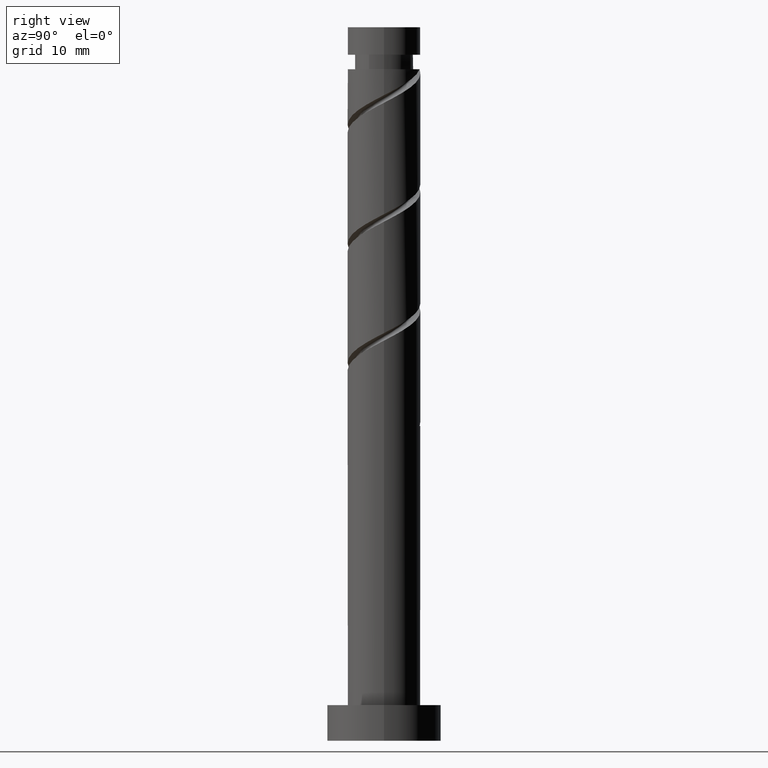
[diagram: clean part render]
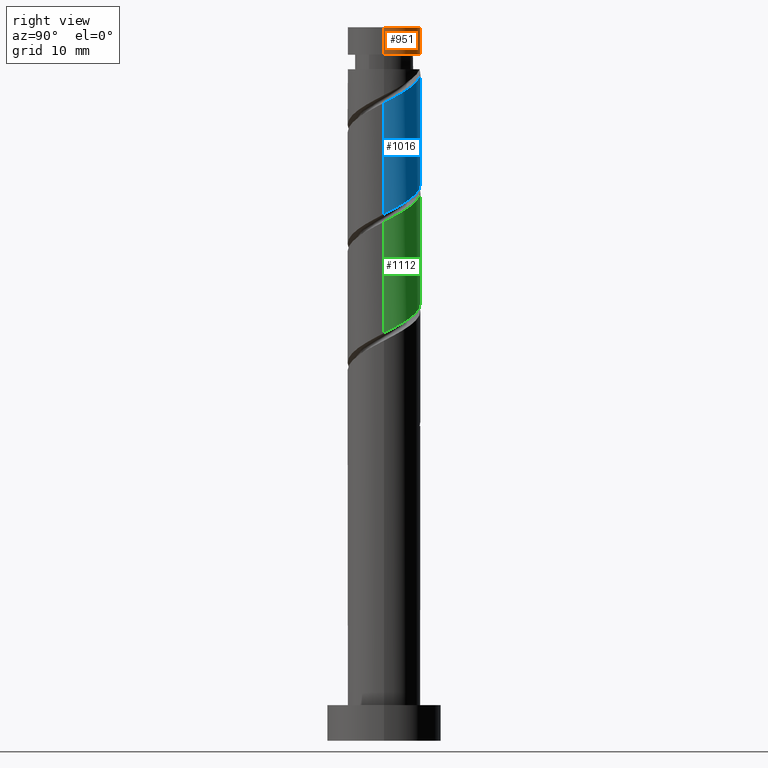
[diagram: same view with three faces highlighted in distinct colors, each labeled with its STEP entity id]
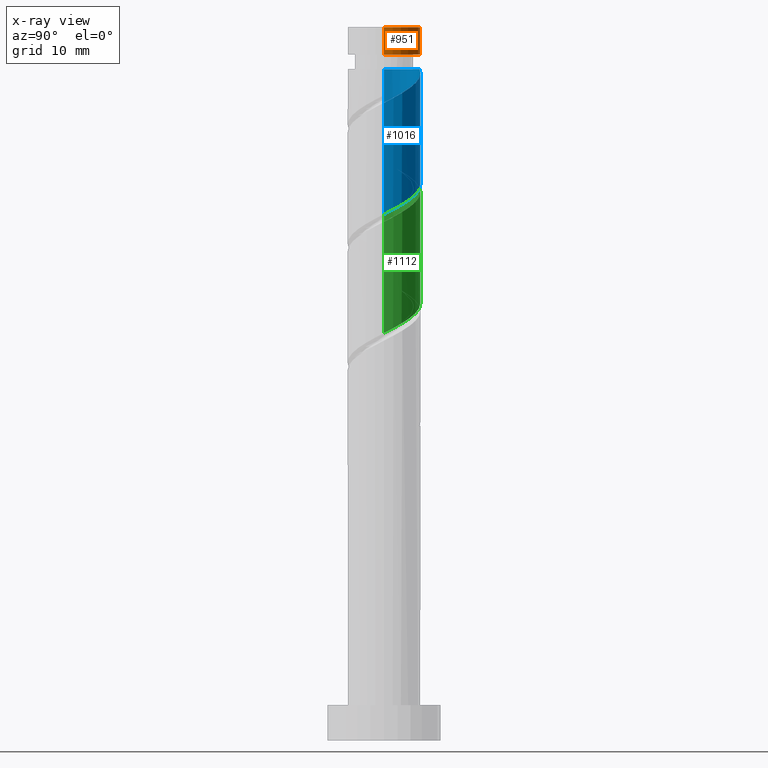
[diagram: x-ray of the same camera — body ghosted, the three highlighted faces saturated]
A machine part, right view with three faces highlighted in distinct colors.
The next image is the same camera in x-ray (body ghosted, the three faces saturated) — at least one of them is partly hidden behind the body in this view.
Their STEP definitions:

[orange] entity #951 — the highlighted cylindrical surface (edge-blend (fillet) strip) has radius 5.1 mm, axis along (-0, -0, -1).
#3 = CARTESIAN_POINT ( 'NONE',  ( 0.000000000000000000, 0.000000000000000000, 96.15197942180186885 ) ) ;
#56 = CIRCLE ( 'NONE', #1044, 5.099999999999999645 ) ;
#73 = DIRECTION ( 'NONE',  ( 0.000000000000000000, 0.000000000000000000, 1.000000000000000000 ) ) ;
#92 = VERTEX_POINT ( 'NONE', #964 ) ;
#102 = LINE ( 'NONE', #211, #1171 ) ;
#178 = CYLINDRICAL_SURFACE ( 'NONE', #221, 5.099999999999999645 ) ;
#211 = CARTESIAN_POINT ( 'NONE',  ( 5.099999999999999645, 6.245698675651500839E-16, 100.0000000000000000 ) ) ;
#218 = DIRECTION ( 'NONE',  ( -0.000000000000000000, -0.000000000000000000, -1.000000000000000000 ) ) ;
#221 = AXIS2_PLACEMENT_3D ( 'NONE', #989, #1453, #884 ) ;
#224 = DIRECTION ( 'NONE',  ( -0.000000000000000000, -0.000000000000000000, -1.000000000000000000 ) ) ;
#299 = CARTESIAN_POINT ( 'NONE',  ( 5.099999999999999645, 6.245698675651500839E-16, 100.0000000000000000 ) ) ;
#320 = CARTESIAN_POINT ( 'NONE',  ( 5.100000000000000533, 6.245698675651501825E-16, 96.15197942180186885 ) ) ;
#401 = VERTEX_POINT ( 'NONE', #909 ) ;
#452 = CARTESIAN_POINT ( 'NONE',  ( -5.099999999999999645, 0.000000000000000000, 100.0000000000000000 ) ) ;
#464 = EDGE_LOOP ( 'NONE', ( #1149, #837, #1304, #997 ) ) ;
#527 = FACE_OUTER_BOUND ( 'NONE', #464, .T. ) ;
#543 = DIRECTION ( 'NONE',  ( 1.000000000000000000, 0.000000000000000000, 0.000000000000000000 ) ) ;
#704 = EDGE_CURVE ( 'NONE', #92, #1042, #1283, .T. ) ;
#796 = VERTEX_POINT ( 'NONE', #299 ) ;
#822 = EDGE_CURVE ( 'NONE', #796, #401, #56, .T. ) ;
#828 = AXIS2_PLACEMENT_3D ( 'NONE', #3, #1484, #1472 ) ;
#837 = ORIENTED_EDGE ( 'NONE', *, *, #1219, .T. ) ;
#873 = CARTESIAN_POINT ( 'NONE',  ( 0.000000000000000000, 0.000000000000000000, 100.0000000000000000 ) ) ;
#884 = DIRECTION ( 'NONE',  ( -1.000000000000000000, 0.000000000000000000, 0.000000000000000000 ) ) ;
#909 = CARTESIAN_POINT ( 'NONE',  ( -5.099999999999999645, 0.000000000000000000, 100.0000000000000000 ) ) ;
#951 = ADVANCED_FACE ( 'NONE', ( #527 ), #178, .T. ) ;
#964 = CARTESIAN_POINT ( 'NONE',  ( -5.100000000000000533, 0.000000000000000000, 96.15197942180186885 ) ) ;
#989 = CARTESIAN_POINT ( 'NONE',  ( 0.000000000000000000, 0.000000000000000000, 100.0000000000000000 ) ) ;
#997 = ORIENTED_EDGE ( 'NONE', *, *, #1309, .F. ) ;
#1042 = VERTEX_POINT ( 'NONE', #320 ) ;
#1044 = AXIS2_PLACEMENT_3D ( 'NONE', #873, #73, #543 ) ;
#1149 = ORIENTED_EDGE ( 'NONE', *, *, #822, .F. ) ;
#1150 = LINE ( 'NONE', #452, #1257 ) ;
#1171 = VECTOR ( 'NONE', #224, 1000.000000000000000 ) ;
#1219 = EDGE_CURVE ( 'NONE', #796, #1042, #102, .T. ) ;
#1257 = VECTOR ( 'NONE', #218, 1000.000000000000000 ) ;
#1283 = CIRCLE ( 'NONE', #828, 5.100000000000000533 ) ;
#1304 = ORIENTED_EDGE ( 'NONE', *, *, #704, .F. ) ;
#1309 = EDGE_CURVE ( 'NONE', #401, #92, #1150, .T. ) ;
#1453 = DIRECTION ( 'NONE',  ( -0.000000000000000000, -0.000000000000000000, -1.000000000000000000 ) ) ;
#1472 = DIRECTION ( 'NONE',  ( -1.000000000000000000, 0.000000000000000000, 0.000000000000000000 ) ) ;
#1484 = DIRECTION ( 'NONE',  ( -0.000000000000000000, -0.000000000000000000, -1.000000000000000000 ) ) ;

[blue] entity #1016 — the highlighted cylindrical surface (edge-blend (fillet) strip) has radius 5.1 mm, axis along (-0, -0, -1).
#6 = ORIENTED_EDGE ( 'NONE', *, *, #581, .T. ) ;
#21 = DIRECTION ( 'NONE',  ( -1.000000000000000000, 0.000000000000000000, 0.000000000000000000 ) ) ;
#74 = VERTEX_POINT ( 'NONE', #830 ) ;
#86 = CARTESIAN_POINT ( 'NONE',  ( 5.099999999999999645, 6.245698675651500839E-16, 100.0000000000000000 ) ) ;
#89 = CYLINDRICAL_SURFACE ( 'NONE', #1123, 5.099999999999999645 ) ;
#90 = CARTESIAN_POINT ( 'NONE',  ( -5.099999999999996980, 0.06579853909330268813, 82.10881693619160160 ) ) ;
#93 = CARTESIAN_POINT ( 'NONE',  ( -5.100000000000000533, 0.000000000000000000, 94.11197942180186260 ) ) ;
#96 = ORIENTED_EDGE ( 'NONE', *, *, #409, .F. ) ;
#97 = CARTESIAN_POINT ( 'NONE',  ( -4.416569472184766809, 2.704181265499164155, 80.68605349587595299 ) ) ;
#109 = CARTESIAN_POINT ( 'NONE',  ( -2.435203784101227065, 4.481047035001870071, 79.29716460698706726 ) ) ;
#115 = CARTESIAN_POINT ( 'NONE',  ( 4.835838561038999117, 1.620081915079681467, 74.66753497735741973 ) ) ;
#122 = CARTESIAN_POINT ( 'NONE',  ( -1.014887185848653228, 4.998000000000012655, 94.11197942180179155 ) ) ;
#126 = VECTOR ( 'NONE', #819, 1000.000000000000000 ) ;
#137 = CARTESIAN_POINT ( 'NONE',  ( 5.075102206204961774, 1.030543456572657224, 89.94531275513523383 ) ) ;
#143 = VERTEX_POINT ( 'NONE', #122 ) ;
#193 = VERTEX_POINT ( 'NONE', #1047 ) ;
#197 = CARTESIAN_POINT ( 'NONE',  ( 4.550174408452611452, 2.472770727741254504, 75.13049794032038164 ) ) ;
#203 = CARTESIAN_POINT ( 'NONE',  ( -5.098302459915170282, 0.1315751770772753959, 82.07494238476483872 ) ) ;
#240 = CARTESIAN_POINT ( 'NONE',  ( 4.745835839194866956, 1.867362361035910912, 90.40827571809813890 ) ) ;
#254 =( BOUNDED_CURVE ( )  B_SPLINE_CURVE ( 2, ( #1260, #90, #203, #334, #560, #97, #1254, #1241, #109, #893, #567, #1158, #1136, #430, #1468, #1465, #1357, #197, #115, #681, #584 ),
 .UNSPECIFIED., .F., .T. ) 
 B_SPLINE_CURVE_WITH_KNOTS ( ( 3, 2, 2, 2, 2, 2, 2, 2, 2, 2, 3 ),
 ( 0.4295248053855290071, 0.4305555555555555802, 0.4444444444444444198, 0.4583333333333333148, 0.4722222222222222099, 0.4861111111111111049, 0.5000000000000000000, 0.5138888888888888395, 0.5277777777777777901, 0.5416666666666666297, 0.5545248053855291737 ),
 .UNSPECIFIED. ) 
 CURVE ( )  GEOMETRIC_REPRESENTATION_ITEM ( )  RATIONAL_B_SPLINE_CURVE ( ( 0.9071930855141199235, 0.9080659294509675350, 0.9090909090909076173, 0.8952797754656421914, 0.9090909090909076173, 0.8952797754656421914, 0.9090909090909076173, 0.8952797754656421914, 0.9090909090909076173, 0.8952797754656421914, 0.9090909090909076173, 0.8952797754656421914, 0.9090909090909076173, 0.8952797754656421914, 0.9090909090909076173, 0.8952797754656421914, 0.9090909090909076173, 0.8952797754656421914, 0.9090909090909076173, 0.8963047551055821627, 0.9071930855141200345 ) ) 
 REPRESENTATION_ITEM ( '' )  );
#288 = CARTESIAN_POINT ( 'NONE',  ( -5.099999999999998757, -2.875751060277057461E-15, 82.14283431012397330 ) ) ;
#334 = CARTESIAN_POINT ( 'NONE',  ( -5.075102206204952004, 1.030543456572657224, 81.61197942180187681 ) ) ;
#361 = CARTESIAN_POINT ( 'NONE',  ( 5.100000000000005862, 2.801056227542567419E-15, 89.41445786681308050 ) ) ;
#409 = EDGE_CURVE ( 'NONE', #74, #143, #507, .T. ) ;
#417 = DIRECTION ( 'NONE',  ( -0.000000000000000000, -0.000000000000000000, -1.000000000000000000 ) ) ;
#428 = ORIENTED_EDGE ( 'NONE', *, *, #1462, .F. ) ;
#430 = CARTESIAN_POINT ( 'NONE',  ( 1.896169435429659433, 4.819048006759574676, 76.98234979217222929 ) ) ;
#451 = CARTESIAN_POINT ( 'NONE',  ( 2.435203784101234170, 4.481047035001873624, 92.26012756995001496 ) ) ;
#472 = CARTESIAN_POINT ( 'NONE',  ( 4.416569472184775691, 2.704181265499165043, 90.87123868106117186 ) ) ;
#507 =( BOUNDED_CURVE ( )  B_SPLINE_CURVE ( 2, ( #361, #701, #1178, #137, #240, #472, #605, #1361, #451, #1148, #1061, #919, #1053 ),
 .UNSPECIFIED., .F., .T. ) 
 B_SPLINE_CURVE_WITH_KNOTS ( ( 3, 2, 2, 2, 2, 2, 3 ),
 ( 0.6795248053855292847, 0.6805555555555555802, 0.6944444444444444198, 0.7083333333333332593, 0.7222222222222222099, 0.7361111111111111605, 0.7500000000000000000 ),
 .UNSPECIFIED. ) 
 CURVE ( )  GEOMETRIC_REPRESENTATION_ITEM ( )  RATIONAL_B_SPLINE_CURVE ( ( 0.9071930855141268069, 0.9080659294509743074, 0.9090909090909141677, 0.8952797754656484086, 0.9090909090909141677, 0.8952797754656484086, 0.9090909090909141677, 0.8952797754656484086, 0.9090909090909141677, 0.8952797754656484086, 0.9090909090909141677, 0.8952797754656484086, 0.9090909090909141677 ) ) 
 REPRESENTATION_ITEM ( '' )  );
#520 = VECTOR ( 'NONE', #417, 1000.000000000000000 ) ;
#555 = VERTEX_POINT ( 'NONE', #93 ) ;
#559 = DIRECTION ( 'NONE',  ( -0.000000000000000000, -0.000000000000000000, -1.000000000000000000 ) ) ;
#560 = CARTESIAN_POINT ( 'NONE',  ( -4.745835839194858963, 1.867362361035910689, 81.14901645883890069 ) ) ;
#567 = CARTESIAN_POINT ( 'NONE',  ( -0.7557346768694422900, 5.043695579451344280, 78.37123868106115765 ) ) ;
#581 = EDGE_CURVE ( 'NONE', #74, #193, #1336, .T. ) ;
#584 = CARTESIAN_POINT ( 'NONE',  ( 5.099999999999997868, 2.614319145706415381E-16, 73.80950097679060207 ) ) ;
#605 = CARTESIAN_POINT ( 'NONE',  ( 3.820951375190252186, 3.377918084920322528, 91.33420164402410535 ) ) ;
#635 = ORIENTED_EDGE ( 'NONE', *, *, #1327, .F. ) ;
#681 = CARTESIAN_POINT ( 'NONE',  ( 5.100000000000001421, 0.8315772962843184235, 74.23942048915623104 ) ) ;
#684 = ORIENTED_EDGE ( 'NONE', *, *, #886, .T. ) ;
#689 = CARTESIAN_POINT ( 'NONE',  ( 0.000000000000000000, 0.000000000000000000, 100.0000000000000000 ) ) ;
#701 = CARTESIAN_POINT ( 'NONE',  ( 5.100000000000005862, 0.06579853909331913331, 89.44847524074543799 ) ) ;
#733 = CARTESIAN_POINT ( 'NONE',  ( -5.099999999999999645, 0.000000000000000000, 100.0000000000000000 ) ) ;
#819 = DIRECTION ( 'NONE',  ( -0.000000000000000000, -0.000000000000000000, -1.000000000000000000 ) ) ;
#830 = CARTESIAN_POINT ( 'NONE',  ( 5.100000000000005862, 2.801056227542567419E-15, 89.41445786681308050 ) ) ;
#886 = EDGE_CURVE ( 'NONE', #555, #143, #921, .T. ) ;
#893 = CARTESIAN_POINT ( 'NONE',  ( -1.645074290006728557, 4.910439165662267236, 78.83420164402410535 ) ) ;
#916 = CARTESIAN_POINT ( 'NONE',  ( 0.000000000000000000, 0.000000000000000000, 94.11197942180186260 ) ) ;
#919 = CARTESIAN_POINT ( 'NONE',  ( -0.1336049362678436714, 5.176951993240429317, 93.64901645883891490 ) ) ;
#921 = CIRCLE ( 'NONE', #1021, 5.100000000000000533 ) ;
#1004 = VERTEX_POINT ( 'NONE', #288 ) ;
#1016 = ADVANCED_FACE ( 'NONE', ( #1127 ), #89, .T. ) ;
#1018 = EDGE_LOOP ( 'NONE', ( #96, #6, #635, #428, #684 ) ) ;
#1021 = AXIS2_PLACEMENT_3D ( 'NONE', #916, #1175, #21 ) ;
#1047 = CARTESIAN_POINT ( 'NONE',  ( 5.099999999999997868, 2.614319145706415381E-16, 73.80950097679060207 ) ) ;
#1053 = CARTESIAN_POINT ( 'NONE',  ( -1.014887185848653228, 4.998000000000012655, 94.11197942180179155 ) ) ;
#1061 = CARTESIAN_POINT ( 'NONE',  ( 0.7557346768694481742, 5.043695579451349609, 93.18605349587593878 ) ) ;
#1123 = AXIS2_PLACEMENT_3D ( 'NONE', #689, #559, #1463 ) ;
#1127 = FACE_OUTER_BOUND ( 'NONE', #1018, .T. ) ;
#1136 = CARTESIAN_POINT ( 'NONE',  ( 1.014887185848753592, 4.997999999999999332, 77.44531275513521962 ) ) ;
#1148 = CARTESIAN_POINT ( 'NONE',  ( 1.645074290006736550, 4.910439165662274341, 92.72309053291300529 ) ) ;
#1158 = CARTESIAN_POINT ( 'NONE',  ( 0.1336049362678445318, 5.176951993240419547, 77.90827571809815311 ) ) ;
#1175 = DIRECTION ( 'NONE',  ( -0.000000000000000000, -0.000000000000000000, -1.000000000000000000 ) ) ;
#1178 = CARTESIAN_POINT ( 'NONE',  ( 5.098302459915178275, 0.1315751770772746743, 89.48234979217220086 ) ) ;
#1241 = CARTESIAN_POINT ( 'NONE',  ( -3.225333278195726461, 4.051654904341470242, 79.76012756995000075 ) ) ;
#1254 = CARTESIAN_POINT ( 'NONE',  ( -3.820951375190247301, 3.377918084920318531, 80.22309053291299108 ) ) ;
#1260 = CARTESIAN_POINT ( 'NONE',  ( -5.099999999999998757, -2.875751060277057067E-15, 82.14283431012398751 ) ) ;
#1267 = LINE ( 'NONE', #733, #126 ) ;
#1327 = EDGE_CURVE ( 'NONE', #1004, #193, #254, .T. ) ;
#1336 = LINE ( 'NONE', #86, #520 ) ;
#1357 = CARTESIAN_POINT ( 'NONE',  ( 3.990101162325418116, 3.176333218415431148, 75.59346090328335777 ) ) ;
#1361 = CARTESIAN_POINT ( 'NONE',  ( 3.225333278195734454, 4.051654904341476460, 91.79716460698709568 ) ) ;
#1462 = EDGE_CURVE ( 'NONE', #555, #1004, #1267, .T. ) ;
#1463 = DIRECTION ( 'NONE',  ( -1.000000000000000000, 0.000000000000000000, 0.000000000000000000 ) ) ;
#1465 = CARTESIAN_POINT ( 'NONE',  ( 3.430027916198223892, 3.879895709089609124, 76.05642386624627704 ) ) ;
#1468 = CARTESIAN_POINT ( 'NONE',  ( 2.663098675813944993, 4.349471857924593010, 76.51938682920928159 ) ) ;

[green] entity #1112 — the highlighted cylindrical surface (edge-blend (fillet) strip) has radius 5.1 mm, axis along (-0, -0, -1).
#23 = CARTESIAN_POINT ( 'NONE',  ( -4.745835839194858963, 1.867362361035910689, 64.48234979217224350 ) ) ;
#30 = CARTESIAN_POINT ( 'NONE',  ( 1.896169435429659433, 4.819048006759574676, 60.31568312550557920 ) ) ;
#32 = FACE_OUTER_BOUND ( 'NONE', #479, .T. ) ;
#68 = ORIENTED_EDGE ( 'NONE', *, *, #457, .F. ) ;
#194 = CARTESIAN_POINT ( 'NONE',  ( -0.1336049362678436714, 5.176951993240429317, 76.98234979217225771 ) ) ;
#257 = CARTESIAN_POINT ( 'NONE',  ( -1.645074290006728557, 4.910439165662267236, 62.16753497735741263 ) ) ;
#264 = ORIENTED_EDGE ( 'NONE', *, *, #791, .F. ) ;
#271 = CARTESIAN_POINT ( 'NONE',  ( -5.075102206204952004, 1.030543456572657224, 64.94531275513519120 ) ) ;
#284 = CARTESIAN_POINT ( 'NONE',  ( 2.663098675813944993, 4.349471857924593010, 59.85272016254260308 ) ) ;
#375 = EDGE_CURVE ( 'NONE', #1236, #1224, #795, .T. ) ;
#381 = CARTESIAN_POINT ( 'NONE',  ( 5.075102206204961774, 1.030543456572657224, 73.27864608846856243 ) ) ;
#423 = DIRECTION ( 'NONE',  ( -0.000000000000000000, -0.000000000000000000, -1.000000000000000000 ) ) ;
#435 = CARTESIAN_POINT ( 'NONE',  ( -3.430027916198228333, 3.879895709089618894, 78.83420164402410535 ) ) ;
#441 = ORIENTED_EDGE ( 'NONE', *, *, #375, .F. ) ;
#457 = EDGE_CURVE ( 'NONE', #1476, #1236, #658, .T. ) ;
#473 = CARTESIAN_POINT ( 'NONE',  ( 0.000000000000000000, 0.000000000000000000, 100.0000000000000000 ) ) ;
#479 = EDGE_LOOP ( 'NONE', ( #68, #566, #264, #441 ) ) ;
#482 = CARTESIAN_POINT ( 'NONE',  ( -3.820951375190247301, 3.377918084920318531, 63.55642386624632678 ) ) ;
#490 = VECTOR ( 'NONE', #423, 1000.000000000000000 ) ;
#530 = CARTESIAN_POINT ( 'NONE',  ( -5.100000000000005862, -2.868281577003589406E-15, 81.08112453347975190 ) ) ;
#547 = CARTESIAN_POINT ( 'NONE',  ( 2.435203784101234170, 4.481047035001873624, 75.59346090328337198 ) ) ;
#548 = VECTOR ( 'NONE', #1329, 1000.000000000000000 ) ;
#554 = CARTESIAN_POINT ( 'NONE',  ( 4.550174408452611452, 2.472770727741254504, 58.46383127365371735 ) ) ;
#563 = CARTESIAN_POINT ( 'NONE',  ( 0.7557346768694481742, 5.043695579451349609, 76.51938682920926738 ) ) ;
#566 = ORIENTED_EDGE ( 'NONE', *, *, #930, .T. ) ;
#604 = CARTESIAN_POINT ( 'NONE',  ( -5.099999999999997868, 0.06579853909330653228, 65.44215026952490177 ) ) ;
#612 = CARTESIAN_POINT ( 'NONE',  ( 0.1336049362678445318, 5.176951993240419547, 61.24160905143149591 ) ) ;
#636 = CARTESIAN_POINT ( 'NONE',  ( 4.745835839194866956, 1.867362361035910912, 73.74160905143148170 ) ) ;
#642 = CARTESIAN_POINT ( 'NONE',  ( 5.100000000000000533, 0.8315772962843256400, 57.57275382248957385 ) ) ;
#658 =( BOUNDED_CURVE ( )  B_SPLINE_CURVE ( 2, ( #1425, #742, #1084, #381, #636, #853, #845, #1210, #547, #1116, #563, #194, #794, #1013, #877, #435, #896, #1006, #677, #1355, #530 ),
 .UNSPECIFIED., .F., .T. ) 
 B_SPLINE_CURVE_WITH_KNOTS ( ( 3, 2, 2, 2, 2, 2, 2, 2, 2, 2, 3 ),
 ( 0.4295248053855290626, 0.4305555555555555802, 0.4444444444444444198, 0.4583333333333333703, 0.4722222222222222099, 0.4861111111111111605, 0.5000000000000000000, 0.5138888888888888395, 0.5277777777777777901, 0.5416666666666667407, 0.5545248053855290626 ),
 .UNSPECIFIED. ) 
 CURVE ( )  GEOMETRIC_REPRESENTATION_ITEM ( )  RATIONAL_B_SPLINE_CURVE ( ( 0.9071930855141264738, 0.9080659294509740853, 0.9090909090909141677, 0.8952797754656484086, 0.9090909090909141677, 0.8952797754656484086, 0.9090909090909141677, 0.8952797754656484086, 0.9090909090909141677, 0.8952797754656484086, 0.9090909090909141677, 0.8952797754656484086, 0.9090909090909141677, 0.8952797754656484086, 0.9090909090909141677, 0.8952797754656484086, 0.9090909090909141677, 0.8952797754656484086, 0.9090909090909141677, 0.8963047551055886020, 0.9071930855141262517 ) ) 
 REPRESENTATION_ITEM ( '' )  );
#666 = AXIS2_PLACEMENT_3D ( 'NONE', #473, #1394, #935 ) ;
#672 = CARTESIAN_POINT ( 'NONE',  ( -5.099999999999997868, -2.323009298041986079E-15, 65.47616764345727347 ) ) ;
#677 = CARTESIAN_POINT ( 'NONE',  ( -4.835838561039004446, 1.620081915079684354, 80.22309053291296266 ) ) ;
#725 = CARTESIAN_POINT ( 'NONE',  ( -0.7557346768694422900, 5.043695579451344280, 61.70457201439447914 ) ) ;
#740 = CARTESIAN_POINT ( 'NONE',  ( -4.416569472184766809, 2.704181265499164155, 64.01938682920928159 ) ) ;
#742 = CARTESIAN_POINT ( 'NONE',  ( 5.100000000000006750, 0.06579853909330546369, 72.78180857407880922 ) ) ;
#747 = CARTESIAN_POINT ( 'NONE',  ( -5.099999999999997868, -2.323009298041986079E-15, 65.47616764345727347 ) ) ;
#761 =( BOUNDED_CURVE ( )  B_SPLINE_CURVE ( 2, ( #747, #604, #1416, #271, #23, #740, #482, #1400, #1292, #257, #725, #612, #1070, #30, #284, #772, #1121, #554, #1003, #642, #983 ),
 .UNSPECIFIED., .F., .T. ) 
 B_SPLINE_CURVE_WITH_KNOTS ( ( 3, 2, 2, 2, 2, 2, 2, 2, 2, 2, 3 ),
 ( 0.6795248053855290626, 0.6805555555555555802, 0.6944444444444444198, 0.7083333333333333703, 0.7222222222222222099, 0.7361111111111111605, 0.7500000000000000000, 0.7638888888888888395, 0.7777777777777777901, 0.7916666666666666297, 0.8045248053855290626 ),
 .UNSPECIFIED. ) 
 CURVE ( )  GEOMETRIC_REPRESENTATION_ITEM ( )  RATIONAL_B_SPLINE_CURVE ( ( 0.9071930855141199235, 0.9080659294509675350, 0.9090909090909076173, 0.8952797754656421914, 0.9090909090909076173, 0.8952797754656421914, 0.9090909090909076173, 0.8952797754656421914, 0.9090909090909076173, 0.8952797754656421914, 0.9090909090909076173, 0.8952797754656421914, 0.9090909090909076173, 0.8952797754656421914, 0.9090909090909076173, 0.8952797754656421914, 0.9090909090909076173, 0.8952797754656421914, 0.9090909090909076173, 0.8963047551055822737, 0.9071930855141199235 ) ) 
 REPRESENTATION_ITEM ( '' )  );
#772 = CARTESIAN_POINT ( 'NONE',  ( 3.430027916198223892, 3.879895709089609124, 59.38975719957966248 ) ) ;
#788 = CARTESIAN_POINT ( 'NONE',  ( -5.099999999999999645, 0.000000000000000000, 100.0000000000000000 ) ) ;
#791 = EDGE_CURVE ( 'NONE', #1224, #957, #761, .T. ) ;
#794 = CARTESIAN_POINT ( 'NONE',  ( -1.014887185848751594, 4.998000000000004661, 77.44531275513519120 ) ) ;
#795 = LINE ( 'NONE', #788, #548 ) ;
#845 = CARTESIAN_POINT ( 'NONE',  ( 3.820951375190252186, 3.377918084920322528, 74.66753497735741973 ) ) ;
#853 = CARTESIAN_POINT ( 'NONE',  ( 4.416569472184775691, 2.704181265499165043, 74.20457201439448625 ) ) ;
#874 = CARTESIAN_POINT ( 'NONE',  ( 5.099999999999999645, 6.245698675651500839E-16, 100.0000000000000000 ) ) ;
#877 = CARTESIAN_POINT ( 'NONE',  ( -2.663098675813944549, 4.349471857924601892, 78.37123868106110081 ) ) ;
#896 = CARTESIAN_POINT ( 'NONE',  ( -3.990101162325420781, 3.176333218415438697, 79.29716460698702463 ) ) ;
#930 = EDGE_CURVE ( 'NONE', #1476, #957, #1245, .T. ) ;
#935 = DIRECTION ( 'NONE',  ( -1.000000000000000000, 0.000000000000000000, 0.000000000000000000 ) ) ;
#957 = VERTEX_POINT ( 'NONE', #1342 ) ;
#983 = CARTESIAN_POINT ( 'NONE',  ( 5.099999999999997868, 2.614319145706415381E-16, 57.14283431012395198 ) ) ;
#1003 = CARTESIAN_POINT ( 'NONE',  ( 4.835838561038999117, 1.620081915079681467, 58.00086831069076965 ) ) ;
#1006 = CARTESIAN_POINT ( 'NONE',  ( -4.550174408452618557, 2.472770727741262053, 79.76012756995002917 ) ) ;
#1013 = CARTESIAN_POINT ( 'NONE',  ( -1.896169435429662320, 4.819048006759585334, 77.90827571809818153 ) ) ;
#1054 = CARTESIAN_POINT ( 'NONE',  ( 5.100000000000006750, -3.742211119996870112E-15, 72.74779120014645173 ) ) ;
#1070 = CARTESIAN_POINT ( 'NONE',  ( 1.014887185848753592, 4.997999999999999332, 60.77864608846854111 ) ) ;
#1084 = CARTESIAN_POINT ( 'NONE',  ( 5.098302459915178275, 0.1315751770772746743, 72.81568312550558630 ) ) ;
#1112 = ADVANCED_FACE ( 'NONE', ( #32 ), #1185, .T. ) ;
#1116 = CARTESIAN_POINT ( 'NONE',  ( 1.645074290006736550, 4.910439165662274341, 76.05642386624631968 ) ) ;
#1121 = CARTESIAN_POINT ( 'NONE',  ( 3.990101162325418116, 3.176333218415431148, 58.92679423661667926 ) ) ;
#1128 = CARTESIAN_POINT ( 'NONE',  ( -5.100000000000005862, -2.868281577003589406E-15, 81.08112453347975190 ) ) ;
#1185 = CYLINDRICAL_SURFACE ( 'NONE', #666, 5.099999999999999645 ) ;
#1210 = CARTESIAN_POINT ( 'NONE',  ( 3.225333278195734454, 4.051654904341476460, 75.13049794032042428 ) ) ;
#1224 = VERTEX_POINT ( 'NONE', #672 ) ;
#1236 = VERTEX_POINT ( 'NONE', #1128 ) ;
#1245 = LINE ( 'NONE', #874, #490 ) ;
#1292 = CARTESIAN_POINT ( 'NONE',  ( -2.435203784101227065, 4.481047035001870071, 62.63049794032040296 ) ) ;
#1329 = DIRECTION ( 'NONE',  ( -0.000000000000000000, -0.000000000000000000, -1.000000000000000000 ) ) ;
#1342 = CARTESIAN_POINT ( 'NONE',  ( 5.099999999999997868, 2.614319145706415381E-16, 57.14283431012395198 ) ) ;
#1355 = CARTESIAN_POINT ( 'NONE',  ( -5.100000000000004974, 0.8315772962843317462, 80.65120502111415135 ) ) ;
#1394 = DIRECTION ( 'NONE',  ( -0.000000000000000000, -0.000000000000000000, -1.000000000000000000 ) ) ;
#1400 = CARTESIAN_POINT ( 'NONE',  ( -3.225333278195726461, 4.051654904341470242, 63.09346090328335777 ) ) ;
#1416 = CARTESIAN_POINT ( 'NONE',  ( -5.098302459915170282, 0.1315751770772753959, 65.40827571809816732 ) ) ;
#1425 = CARTESIAN_POINT ( 'NONE',  ( 5.100000000000006750, -3.742211119996870112E-15, 72.74779120014645173 ) ) ;
#1476 = VERTEX_POINT ( 'NONE', #1054 ) ;